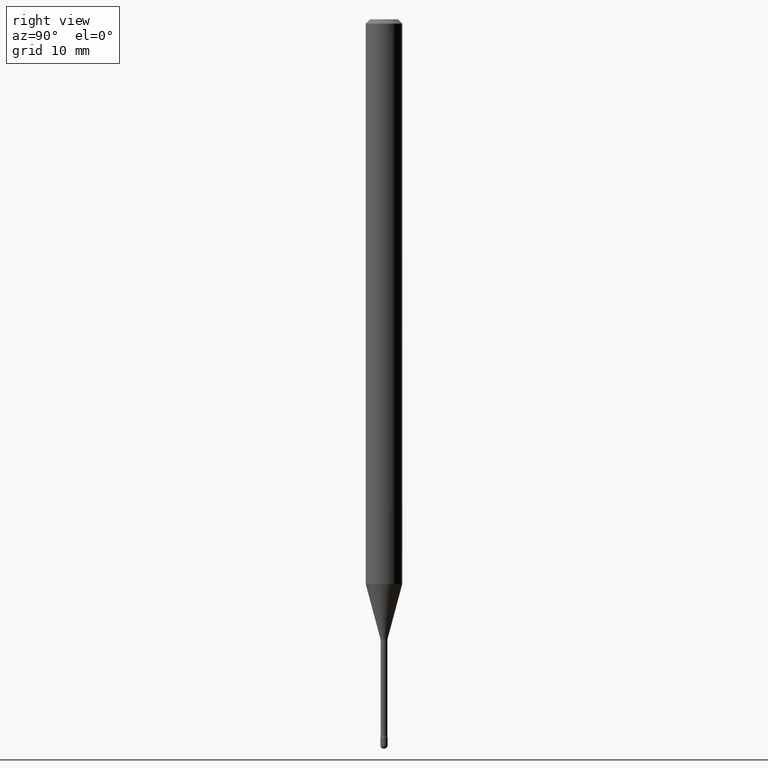
[diagram: clean part render]
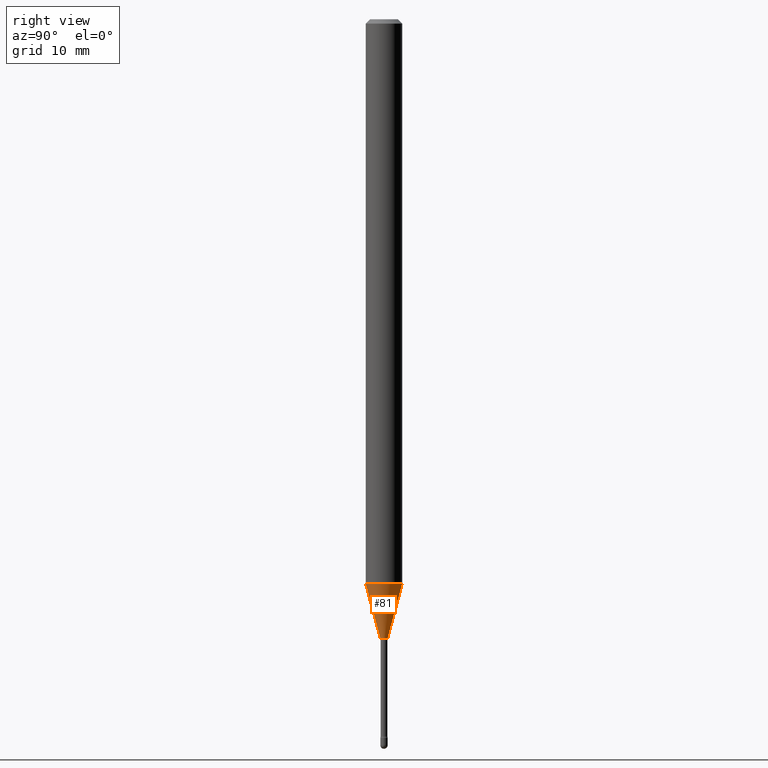
[diagram: same view with one face highlighted and labeled with its STEP entity id]
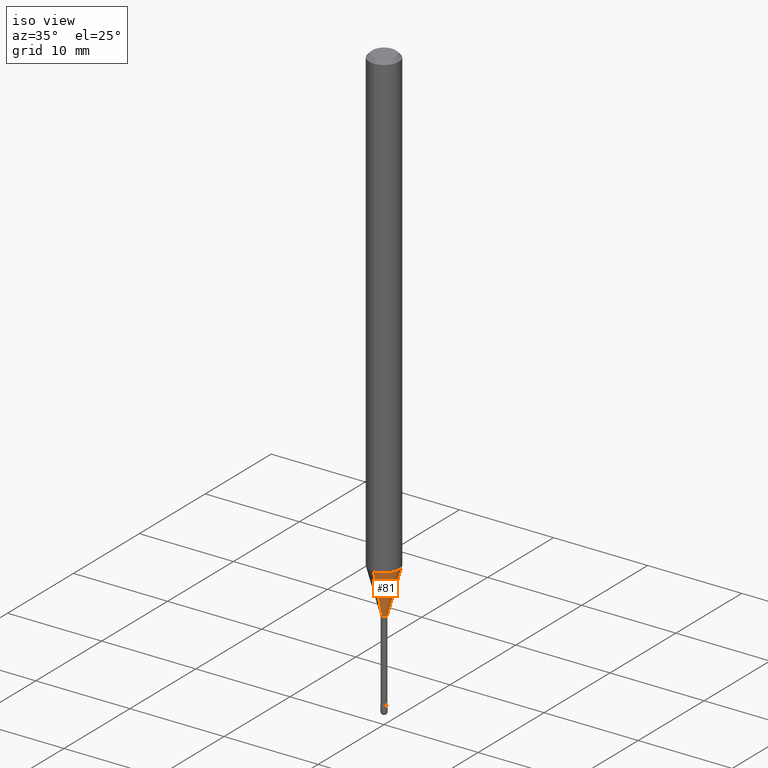
[diagram: same view with one face highlighted and labeled with its STEP entity id]
A machine part, right view. The second image highlights one B-rep face of the part: STEP entity #81.
A second angle (iso view) of the same face is appended — the face is thin or edge-on in the first view.
In plain terms, the highlighted conical surface has half-angle 15 deg.
Its self-contained STEP definition (entity closure, byte-faithful):
#7 = DIRECTION ( 'NONE',  ( -2.445404936488947864E-29, 3.491572803883325128E-15, 1.000000000000000000 ) ) ;
#40 = CONICAL_SURFACE ( 'NONE', #357, 0.01226111260566398534, 0.2617993877991499074 ) ;
#56 = VECTOR ( 'NONE', #282, 39.37007874015748143 ) ;
#78 = AXIS2_PLACEMENT_3D ( 'NONE', #528, #224, #131 ) ;
#81 = ADVANCED_FACE ( 'NONE', ( #391 ), #40, .T. ) ;
#90 = EDGE_CURVE ( 'NONE', #490, #235, #136, .T. ) ;
#119 = AXIS2_PLACEMENT_3D ( 'NONE', #457, #7, #272 ) ;
#131 = DIRECTION ( 'NONE',  ( -6.982962677686265922E-15, -1.000000000000000000, 4.370956789862821150E-15 ) ) ;
#136 = LINE ( 'NONE', #356, #146 ) ;
#144 = CARTESIAN_POINT ( 'NONE',  ( 4.440892098501098492E-16, 0.06249999999999323458, -1.935598421515880352 ) ) ;
#146 = VECTOR ( 'NONE', #438, 39.37007874015748854 ) ;
#149 = CIRCLE ( 'NONE', #78, 0.06250000000000000000 ) ;
#157 = CIRCLE ( 'NONE', #119, 0.01226111260566398534 ) ;
#165 = ORIENTED_EDGE ( 'NONE', *, *, #555, .F. ) ;
#190 = VERTEX_POINT ( 'NONE', #239 ) ;
#205 = EDGE_CURVE ( 'NONE', #206, #190, #232, .T. ) ;
#206 = VERTEX_POINT ( 'NONE', #275 ) ;
#224 = DIRECTION ( 'NONE',  ( -2.445404936488947864E-29, 3.491572803883325128E-15, 1.000000000000000000 ) ) ;
#232 = LINE ( 'NONE', #322, #56 ) ;
#235 = VERTEX_POINT ( 'NONE', #144 ) ;
#239 = CARTESIAN_POINT ( 'NONE',  ( -4.364351673553443378E-16, -0.06250000000000677236, -1.935598421515879686 ) ) ;
#242 = ORIENTED_EDGE ( 'NONE', *, *, #90, .T. ) ;
#260 = DIRECTION ( 'NONE',  ( -6.982962677686265922E-15, -1.000000000000000000, 0.000000000000000000 ) ) ;
#272 = DIRECTION ( 'NONE',  ( -6.982962677686265922E-15, -1.000000000000000000, 0.000000000000000000 ) ) ;
#275 = CARTESIAN_POINT ( 'NONE',  ( -8.561889171220828591E-17, -0.01226111260567139781, -2.123092501787273267 ) ) ;
#282 = DIRECTION ( 'NONE',  ( -1.807323732225327773E-15, -0.2588190451025178529, 0.9659258262890690894 ) ) ;
#310 = EDGE_CURVE ( 'NONE', #206, #490, #157, .T. ) ;
#322 = CARTESIAN_POINT ( 'NONE',  ( -8.561889171220828591E-17, -0.01226111260567139781, -2.123092501787273267 ) ) ;
#342 = ORIENTED_EDGE ( 'NONE', *, *, #310, .T. ) ;
#356 = CARTESIAN_POINT ( 'NONE',  ( 8.712044494296330293E-17, 0.01226111260565657286, -2.123092501787273267 ) ) ;
#357 = AXIS2_PLACEMENT_3D ( 'NONE', #523, #476, #260 ) ;
#371 = ORIENTED_EDGE ( 'NONE', *, *, #205, .F. ) ;
#391 = FACE_OUTER_BOUND ( 'NONE', #423, .T. ) ;
#423 = EDGE_LOOP ( 'NONE', ( #342, #242, #165, #371 ) ) ;
#438 = DIRECTION ( 'NONE',  ( 1.839019923739597554E-15, 0.2588190451025245697, 0.9659258262890670910 ) ) ;
#457 = CARTESIAN_POINT ( 'NONE',  ( 5.191820884493268703E-29, -7.412932039369052448E-15, -2.123092501787273267 ) ) ;
#476 = DIRECTION ( 'NONE',  ( -2.445404936488947864E-29, 3.491572803883325128E-15, 1.000000000000000000 ) ) ;
#490 = VERTEX_POINT ( 'NONE', #503 ) ;
#503 = CARTESIAN_POINT ( 'NONE',  ( 2.656048273965367363E-16, 0.01226111260565657460, -2.123092501787273267 ) ) ;
#523 = CARTESIAN_POINT ( 'NONE',  ( 5.191820884493268703E-29, -7.412932039369052448E-15, -2.123092501787273267 ) ) ;
#528 = CARTESIAN_POINT ( 'NONE',  ( 4.733321935035148342E-29, -6.758282807804339113E-15, -1.935598421515879908 ) ) ;
#555 = EDGE_CURVE ( 'NONE', #190, #235, #149, .T. ) ;